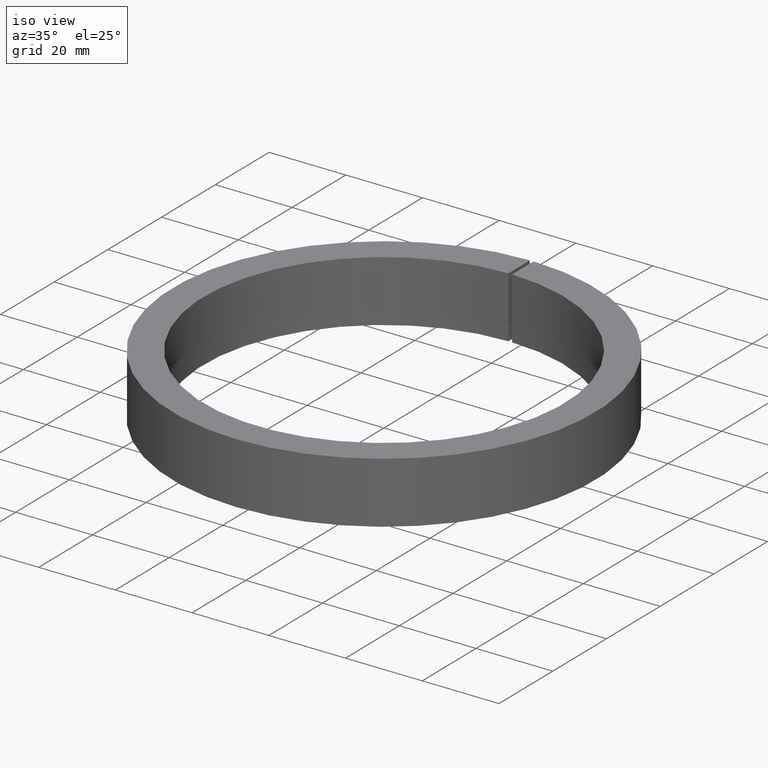
[diagram: clean part render]
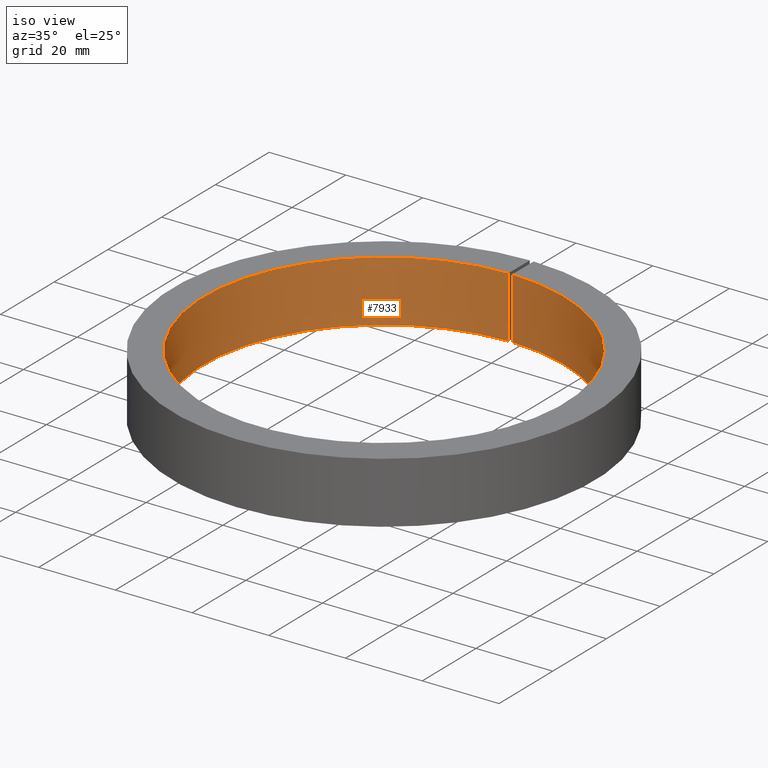
[diagram: same view with one face highlighted and labeled with its STEP entity id]
A machine part, iso view. The second image highlights one B-rep face of the part: STEP entity #7933.
In plain terms, the highlighted cylindrical surface (partial cylindrical patch) has radius 47 mm, axis along (-0, -0, -1).
Its self-contained STEP definition (entity closure, byte-faithful):
#381 = ORIENTED_EDGE ( 'NONE', *, *, #10876, .T. ) ;
#511 = FACE_OUTER_BOUND ( 'NONE', #5768, .T. ) ;
#575 = DIRECTION ( 'NONE',  ( -0.0000000000000000000, -0.0000000000000000000, -1.000000000000000000 ) ) ;
#857 = DIRECTION ( 'NONE',  ( -0.0000000000000000000, -0.0000000000000000000, -1.000000000000000000 ) ) ;
#1076 = CARTESIAN_POINT ( 'NONE',  ( -0.5000000000000000000, 46.99734035027940100, 8.000000000000001800 ) ) ;
#1109 = CYLINDRICAL_SURFACE ( 'NONE', #8722, 47.00000000000000000 ) ;
#1174 = CARTESIAN_POINT ( 'NONE',  ( -0.5000000000000000000, 46.99734035027940100, -8.000000000000000000 ) ) ;
#1352 = EDGE_CURVE ( 'NONE', #12015, #4258, #9953, .T. ) ;
#1564 = CARTESIAN_POINT ( 'NONE',  ( 0.0000000000000000000, 0.0000000000000000000, 8.000000000000001800 ) ) ;
#1611 = CARTESIAN_POINT ( 'NONE',  ( 0.0000000000000000000, 0.0000000000000000000, 0.0000000000000000000 ) ) ;
#2564 = DIRECTION ( 'NONE',  ( -1.000000000000000000, 0.0000000000000000000, 0.0000000000000000000 ) ) ;
#3882 = DIRECTION ( 'NONE',  ( -0.0000000000000000000, -0.0000000000000000000, 1.000000000000000000 ) ) ;
#3954 = LINE ( 'NONE', #1174, #10881 ) ;
#4061 = CIRCLE ( 'NONE', #9364, 47.00000000000000000 ) ;
#4258 = VERTEX_POINT ( 'NONE', #9649 ) ;
#4553 = EDGE_CURVE ( 'NONE', #10771, #7646, #3954, .T. ) ;
#4581 = ORIENTED_EDGE ( 'NONE', *, *, #11662, .F. ) ;
#5329 = AXIS2_PLACEMENT_3D ( 'NONE', #1564, #575, #2564 ) ;
#5487 = ORIENTED_EDGE ( 'NONE', *, *, #1352, .F. ) ;
#5501 = CARTESIAN_POINT ( 'NONE',  ( 0.0000000000000000000, 0.0000000000000000000, -8.000000000000000000 ) ) ;
#5768 = EDGE_LOOP ( 'NONE', ( #4581, #5487, #381, #9080 ) ) ;
#6332 = DIRECTION ( 'NONE',  ( -0.0000000000000000000, -0.0000000000000000000, 1.000000000000000000 ) ) ;
#6340 = CARTESIAN_POINT ( 'NONE',  ( 0.5000000000000000000, 46.99734035027940100, -8.000000000000000000 ) ) ;
#7333 = DIRECTION ( 'NONE',  ( -1.000000000000000000, 0.0000000000000000000, 0.0000000000000000000 ) ) ;
#7646 = VERTEX_POINT ( 'NONE', #1076 ) ;
#7933 = ADVANCED_FACE ( 'NONE', ( #511 ), #1109, .F. ) ;
#8163 = CARTESIAN_POINT ( 'NONE',  ( -0.5000000000000000000, 46.99734035027940100, -8.000000000000000000 ) ) ;
#8216 = DIRECTION ( 'NONE',  ( -0.0000000000000000000, -0.0000000000000000000, -1.000000000000000000 ) ) ;
#8722 = AXIS2_PLACEMENT_3D ( 'NONE', #1611, #8216, #10081 ) ;
#9060 = VECTOR ( 'NONE', #6332, 1000.000000000000000 ) ;
#9080 = ORIENTED_EDGE ( 'NONE', *, *, #4553, .T. ) ;
#9364 = AXIS2_PLACEMENT_3D ( 'NONE', #5501, #857, #7333 ) ;
#9649 = CARTESIAN_POINT ( 'NONE',  ( 0.5000000000000000000, 46.99734035027940100, 8.000000000000001800 ) ) ;
#9953 = LINE ( 'NONE', #10955, #9060 ) ;
#10081 = DIRECTION ( 'NONE',  ( -1.000000000000000000, 0.0000000000000000000, 0.0000000000000000000 ) ) ;
#10578 = CIRCLE ( 'NONE', #5329, 47.00000000000000000 ) ;
#10771 = VERTEX_POINT ( 'NONE', #8163 ) ;
#10876 = EDGE_CURVE ( 'NONE', #12015, #10771, #4061, .T. ) ;
#10881 = VECTOR ( 'NONE', #3882, 1000.000000000000000 ) ;
#10955 = CARTESIAN_POINT ( 'NONE',  ( 0.5000000000000000000, 46.99734035027940100, -8.000000000000000000 ) ) ;
#11662 = EDGE_CURVE ( 'NONE', #4258, #7646, #10578, .T. ) ;
#12015 = VERTEX_POINT ( 'NONE', #6340 ) ;